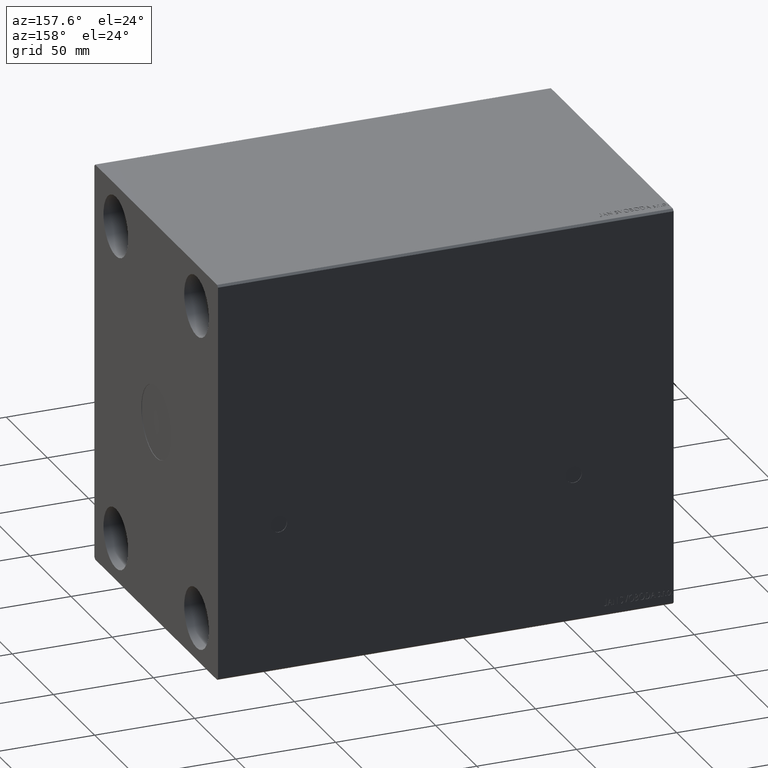
[diagram: clean part render]
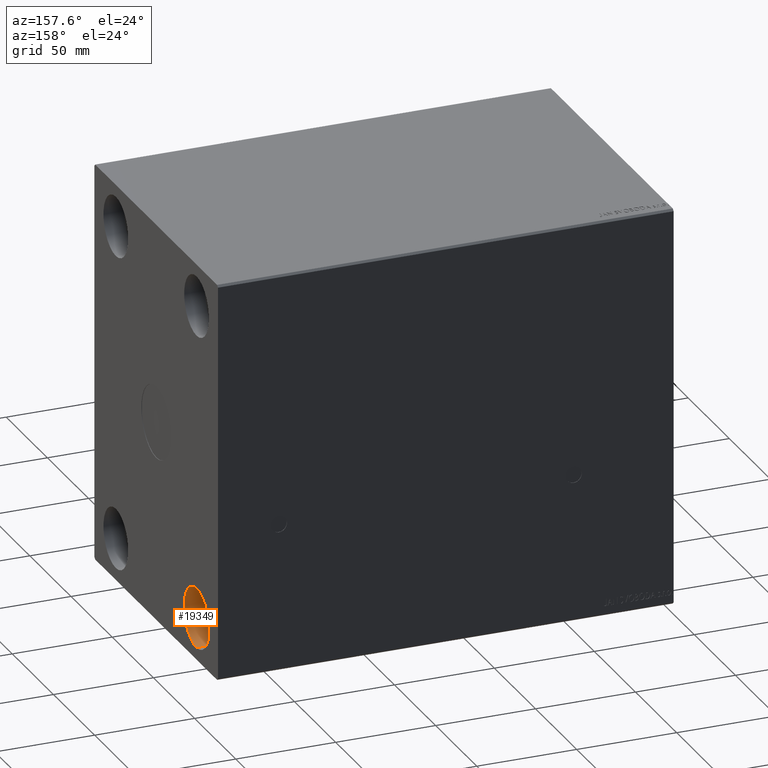
[diagram: same view with one face highlighted and labeled with its STEP entity id]
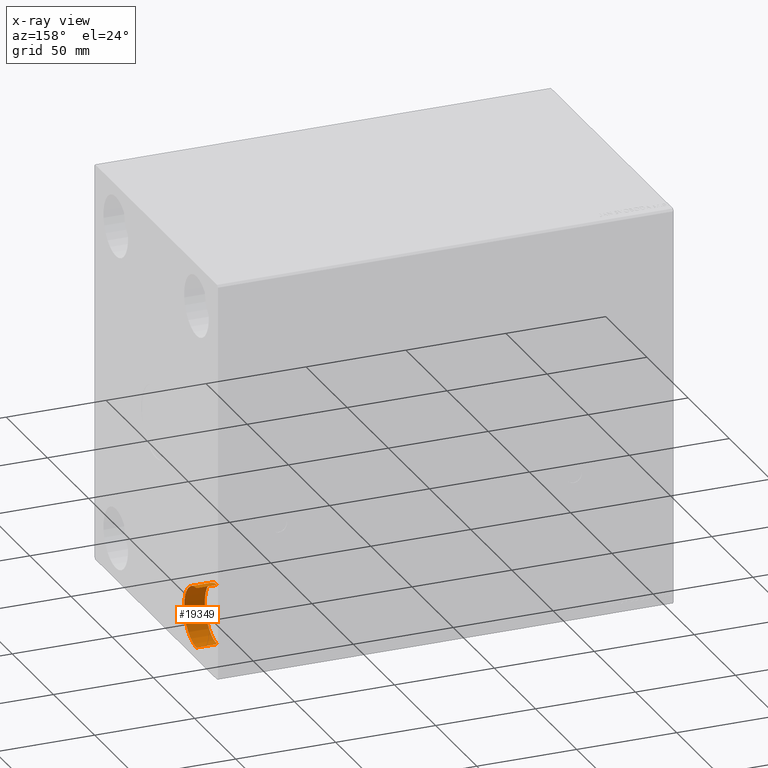
[diagram: x-ray of the same camera — body ghosted, the highlighted face saturated]
A machine part, auxiliary view. The second image highlights one B-rep face of the part: STEP entity #19349.
The next image is the same camera in x-ray: the body ghosted, the highlighted face saturated — about 0% of this face is hidden behind the body in this view.
In plain terms, the highlighted cylindrical surface (edge-blend (fillet) strip) has radius 15 mm, axis along (1, -0, -0).
Its self-contained STEP definition (entity closure, byte-faithful):
#587 = ORIENTED_EDGE ( 'NONE', *, *, #16782, .F. ) ;
#1609 = CARTESIAN_POINT ( 'NONE',  ( 217.6700000000000159, 49.00000000000000711, -94.00000000000001421 ) ) ;
#2457 = AXIS2_PLACEMENT_3D ( 'NONE', #32743, #9531, #29315 ) ;
#2746 = DIRECTION ( 'NONE',  ( -1.000000000000000000, -0.000000000000000000, -0.000000000000000000 ) ) ;
#3771 = EDGE_LOOP ( 'NONE', ( #26403, #30450, #587, #21911 ) ) ;
#4301 = AXIS2_PLACEMENT_3D ( 'NONE', #27244, #10908, #41186 ) ;
#5938 = VERTEX_POINT ( 'NONE', #39084 ) ;
#9531 = DIRECTION ( 'NONE',  ( -1.000000000000000000, -0.000000000000000000, -0.000000000000000000 ) ) ;
#10908 = DIRECTION ( 'NONE',  ( 1.000000000000000000, -0.000000000000000000, -0.000000000000000000 ) ) ;
#12736 = CARTESIAN_POINT ( 'NONE',  ( 217.6700000000000159, 49.00000000000000711, -64.00000000000001421 ) ) ;
#12844 = CARTESIAN_POINT ( 'NONE',  ( 228.0000000000000000, 49.00000000000000711, -79.00000000000001421 ) ) ;
#14499 = DIRECTION ( 'NONE',  ( 1.000000000000000000, -0.000000000000000000, -0.000000000000000000 ) ) ;
#14541 = LINE ( 'NONE', #28080, #28679 ) ;
#16782 = EDGE_CURVE ( 'NONE', #34191, #5938, #36455, .T. ) ;
#17982 = VERTEX_POINT ( 'NONE', #19877 ) ;
#18641 = AXIS2_PLACEMENT_3D ( 'NONE', #12844, #2746, #25952 ) ;
#19349 = ADVANCED_FACE ( 'NONE', ( #40342 ), #24449, .F. ) ;
#19877 = CARTESIAN_POINT ( 'NONE',  ( 217.6700000000000159, 49.00000000000000711, -94.00000000000001421 ) ) ;
#21911 = ORIENTED_EDGE ( 'NONE', *, *, #41840, .F. ) ;
#24449 = CYLINDRICAL_SURFACE ( 'NONE', #4301, 15.00000000000000000 ) ;
#25796 = CIRCLE ( 'NONE', #2457, 15.00000000000000000 ) ;
#25952 = DIRECTION ( 'NONE',  ( 0.000000000000000000, 0.000000000000000000, 1.000000000000000000 ) ) ;
#26403 = ORIENTED_EDGE ( 'NONE', *, *, #33119, .T. ) ;
#27244 = CARTESIAN_POINT ( 'NONE',  ( 217.6700000000000159, 49.00000000000000711, -79.00000000000001421 ) ) ;
#28080 = CARTESIAN_POINT ( 'NONE',  ( 217.6700000000000159, 49.00000000000000711, -64.00000000000001421 ) ) ;
#28679 = VECTOR ( 'NONE', #34294, 1000.000000000000000 ) ;
#29315 = DIRECTION ( 'NONE',  ( 0.000000000000000000, 0.000000000000000000, 1.000000000000000000 ) ) ;
#30450 = ORIENTED_EDGE ( 'NONE', *, *, #40596, .T. ) ;
#31043 = LINE ( 'NONE', #1609, #37634 ) ;
#32090 = VERTEX_POINT ( 'NONE', #12736 ) ;
#32743 = CARTESIAN_POINT ( 'NONE',  ( 217.6700000000000159, 49.00000000000000711, -79.00000000000001421 ) ) ;
#33119 = EDGE_CURVE ( 'NONE', #17982, #32090, #25796, .T. ) ;
#34191 = VERTEX_POINT ( 'NONE', #36122 ) ;
#34294 = DIRECTION ( 'NONE',  ( 1.000000000000000000, -0.000000000000000000, -0.000000000000000000 ) ) ;
#36122 = CARTESIAN_POINT ( 'NONE',  ( 228.0000000000000000, 49.00000000000000711, -94.00000000000001421 ) ) ;
#36455 = CIRCLE ( 'NONE', #18641, 15.00000000000000000 ) ;
#37634 = VECTOR ( 'NONE', #14499, 1000.000000000000000 ) ;
#39084 = CARTESIAN_POINT ( 'NONE',  ( 228.0000000000000000, 49.00000000000000711, -64.00000000000001421 ) ) ;
#40342 = FACE_OUTER_BOUND ( 'NONE', #3771, .T. ) ;
#40596 = EDGE_CURVE ( 'NONE', #32090, #5938, #14541, .T. ) ;
#41186 = DIRECTION ( 'NONE',  ( 0.000000000000000000, 0.000000000000000000, -1.000000000000000000 ) ) ;
#41840 = EDGE_CURVE ( 'NONE', #17982, #34191, #31043, .T. ) ;